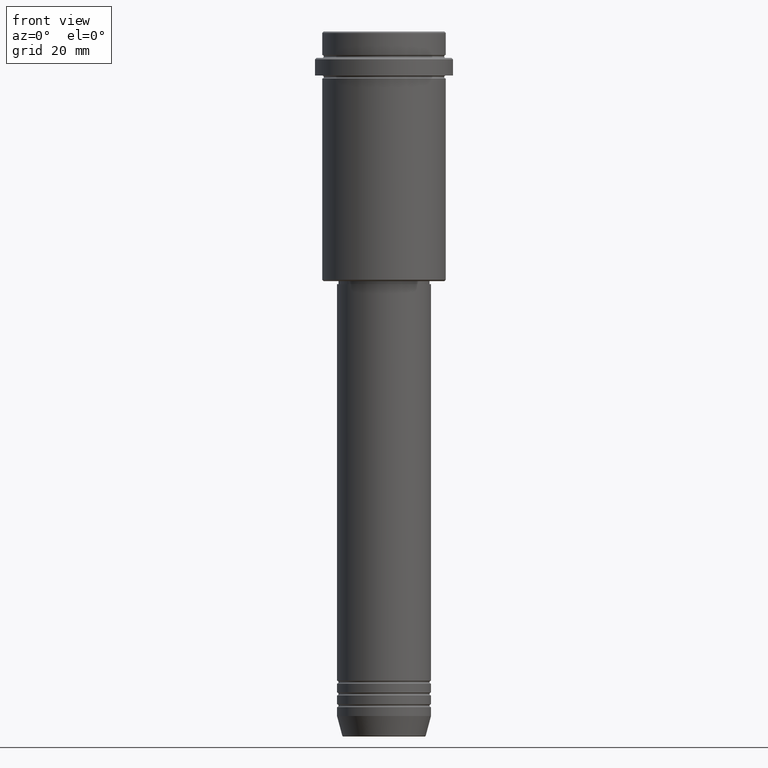
[diagram: clean part render]
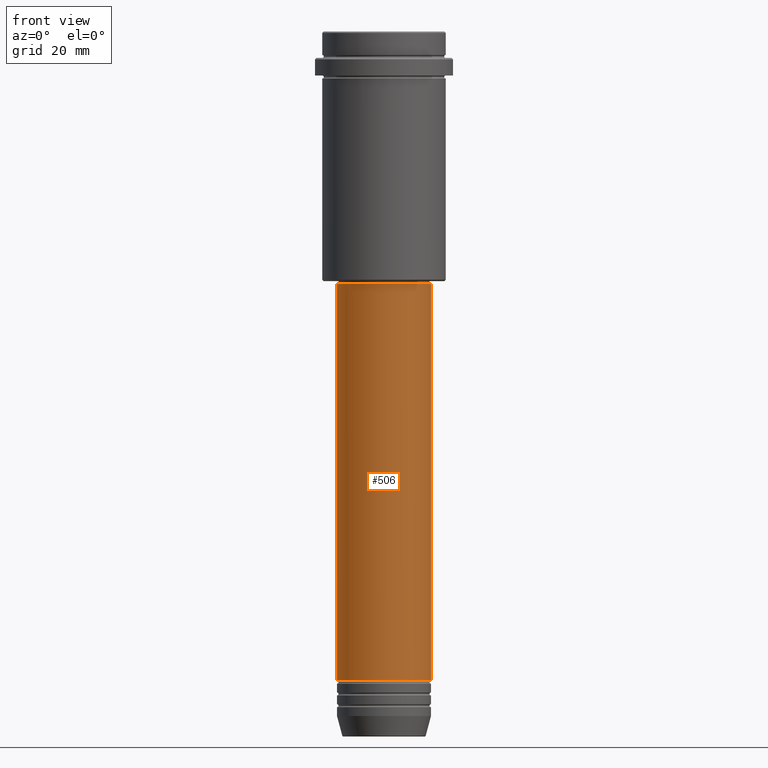
[diagram: same view with one face highlighted and labeled with its STEP entity id]
A machine part, front view. The second image highlights one B-rep face of the part: STEP entity #506.
In plain terms, the highlighted cylindrical surface (partial cylindrical patch) has radius 16 mm, axis along (-0, -0, 1).
Its self-contained STEP definition (entity closure, byte-faithful):
#5 = CARTESIAN_POINT ( 'NONE',  ( 0.000000000000000000, 0.000000000000000000, -220.9999999999998579 ) ) ;
#14 = CIRCLE ( 'NONE', #294, 16.00000000000000355 ) ;
#51 = DIRECTION ( 'NONE',  ( 1.000000000000000000, 0.000000000000000000, 0.000000000000000000 ) ) ;
#56 = CYLINDRICAL_SURFACE ( 'NONE', #1300, 16.00000000000000000 ) ;
#112 = LINE ( 'NONE', #543, #354 ) ;
#135 = DIRECTION ( 'NONE',  ( -0.000000000000000000, -0.000000000000000000, 1.000000000000000000 ) ) ;
#218 = ORIENTED_EDGE ( 'NONE', *, *, #786, .T. ) ;
#227 = CARTESIAN_POINT ( 'NONE',  ( -16.00000000000000355, 1.959434878635765526E-15, -86.00000000000000000 ) ) ;
#245 = CIRCLE ( 'NONE', #459, 16.00000000000000000 ) ;
#280 = ORIENTED_EDGE ( 'NONE', *, *, #1100, .F. ) ;
#294 = AXIS2_PLACEMENT_3D ( 'NONE', #596, #1024, #51 ) ;
#331 = DIRECTION ( 'NONE',  ( 1.000000000000000000, 0.000000000000000000, 0.000000000000000000 ) ) ;
#354 = VECTOR ( 'NONE', #135, 1000.000000000000000 ) ;
#396 = VERTEX_POINT ( 'NONE', #1245 ) ;
#432 = DIRECTION ( 'NONE',  ( -0.000000000000000000, -0.000000000000000000, 1.000000000000000000 ) ) ;
#459 = AXIS2_PLACEMENT_3D ( 'NONE', #5, #432, #331 ) ;
#479 = ORIENTED_EDGE ( 'NONE', *, *, #1152, .T. ) ;
#506 = ADVANCED_FACE ( 'NONE', ( #791 ), #56, .T. ) ;
#519 = CARTESIAN_POINT ( 'NONE',  ( 16.00000000000000000, 0.000000000000000000, 0.000000000000000000 ) ) ;
#529 = ORIENTED_EDGE ( 'NONE', *, *, #857, .F. ) ;
#543 = CARTESIAN_POINT ( 'NONE',  ( -16.00000000000000000, 1.959434878635765131E-15, 0.000000000000000000 ) ) ;
#596 = CARTESIAN_POINT ( 'NONE',  ( 0.000000000000000000, 0.000000000000000000, -86.00000000000000000 ) ) ;
#627 = DIRECTION ( 'NONE',  ( 1.000000000000000000, 0.000000000000000000, 0.000000000000000000 ) ) ;
#635 = LINE ( 'NONE', #519, #1251 ) ;
#746 = CARTESIAN_POINT ( 'NONE',  ( 16.00000000000000000, 0.000000000000000000, -220.9999999999998579 ) ) ;
#786 = EDGE_CURVE ( 'NONE', #891, #1166, #245, .T. ) ;
#791 = FACE_OUTER_BOUND ( 'NONE', #1096, .T. ) ;
#857 = EDGE_CURVE ( 'NONE', #891, #1230, #112, .T. ) ;
#891 = VERTEX_POINT ( 'NONE', #993 ) ;
#993 = CARTESIAN_POINT ( 'NONE',  ( -16.00000000000000000, 1.959434878635765131E-15, -220.9999999999998579 ) ) ;
#1024 = DIRECTION ( 'NONE',  ( -0.000000000000000000, -0.000000000000000000, 1.000000000000000000 ) ) ;
#1096 = EDGE_LOOP ( 'NONE', ( #529, #218, #479, #280 ) ) ;
#1100 = EDGE_CURVE ( 'NONE', #1230, #396, #14, .T. ) ;
#1152 = EDGE_CURVE ( 'NONE', #1166, #396, #635, .T. ) ;
#1166 = VERTEX_POINT ( 'NONE', #746 ) ;
#1230 = VERTEX_POINT ( 'NONE', #227 ) ;
#1245 = CARTESIAN_POINT ( 'NONE',  ( 16.00000000000000355, 0.000000000000000000, -86.00000000000000000 ) ) ;
#1251 = VECTOR ( 'NONE', #1403, 1000.000000000000000 ) ;
#1268 = DIRECTION ( 'NONE',  ( -0.000000000000000000, -0.000000000000000000, 1.000000000000000000 ) ) ;
#1288 = CARTESIAN_POINT ( 'NONE',  ( 0.000000000000000000, 0.000000000000000000, 0.000000000000000000 ) ) ;
#1300 = AXIS2_PLACEMENT_3D ( 'NONE', #1288, #1268, #627 ) ;
#1403 = DIRECTION ( 'NONE',  ( -0.000000000000000000, -0.000000000000000000, 1.000000000000000000 ) ) ;